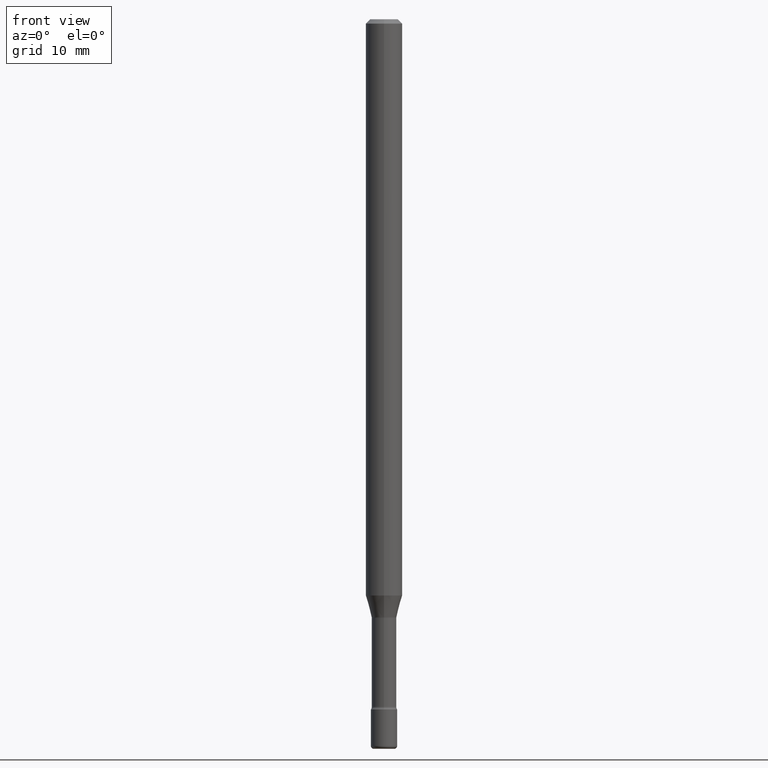
[diagram: clean part render]
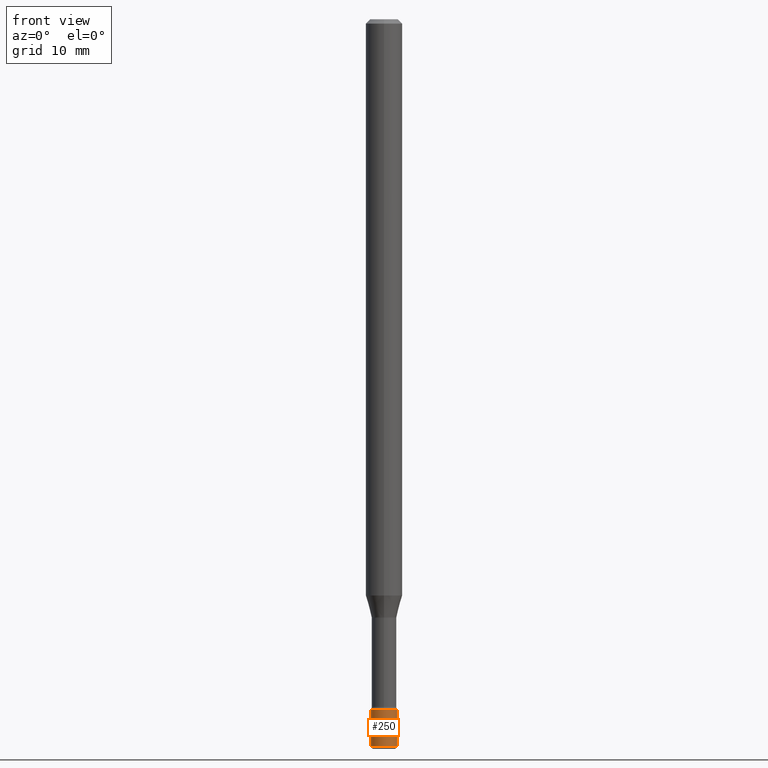
[diagram: same view with one face highlighted and labeled with its STEP entity id]
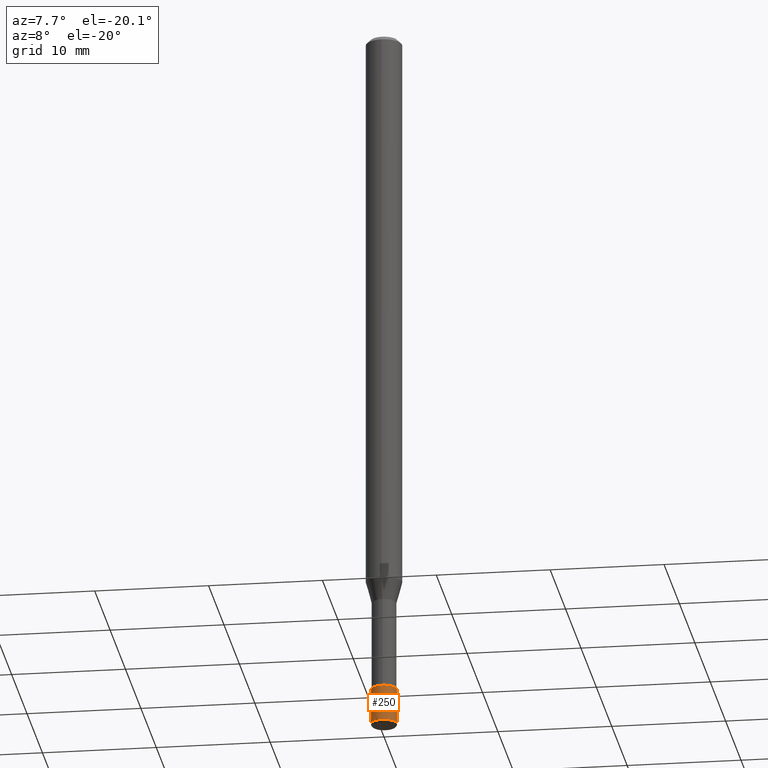
[diagram: same view with one face highlighted and labeled with its STEP entity id]
A machine part, front view. The second image highlights one B-rep face of the part: STEP entity #250.
A second angle (auxiliary view) of the same face is appended — the face is thin or edge-on in the first view.
In plain terms, the highlighted cylindrical surface (edge-blend (fillet) strip) has radius 1.143 mm, axis along (-0, 0, 1).
Its self-contained STEP definition (entity closure, byte-faithful):
#6 = VECTOR ( 'NONE', #255, 39.37007874015748143 ) ;
#21 = CARTESIAN_POINT ( 'NONE',  ( -0.04499999999999999833, -8.155826718949690513E-15, -2.365000000000000213 ) ) ;
#24 = DIRECTION ( 'NONE',  ( -2.445468806185136877E-29, 3.491481338843145188E-15, 1.000000000000000000 ) ) ;
#31 = CARTESIAN_POINT ( 'NONE',  ( -0.04500000000000004691, -8.374044302627387137E-15, -2.489999999999999769 ) ) ;
#42 = EDGE_CURVE ( 'NONE', #418, #435, #361, .T. ) ;
#104 = CARTESIAN_POINT ( 'NONE',  ( 0.000000000000000000, 0.000000000000000000, 0.000000000000000000 ) ) ;
#122 = LINE ( 'NONE', #303, #6 ) ;
#135 = DIRECTION ( 'NONE',  ( 1.000000000000000000, -6.982962677686245411E-15, 0.000000000000000000 ) ) ;
#148 = CARTESIAN_POINT ( 'NONE',  ( 5.783533726627847872E-29, -8.257353366364040046E-15, -2.365000000000000213 ) ) ;
#151 = VERTEX_POINT ( 'NONE', #514 ) ;
#155 = CARTESIAN_POINT ( 'NONE',  ( 0.04499999999999999833, -3.142333204958819823E-16, 2.194279549108170967E-30 ) ) ;
#167 = AXIS2_PLACEMENT_3D ( 'NONE', #543, #275, #135 ) ;
#190 = CYLINDRICAL_SURFACE ( 'NONE', #264, 0.04499999999999999833 ) ;
#191 = CIRCLE ( 'NONE', #389, 0.04499999999999999833 ) ;
#196 = ORIENTED_EDGE ( 'NONE', *, *, #402, .F. ) ;
#211 = VERTEX_POINT ( 'NONE', #21 ) ;
#250 = ADVANCED_FACE ( 'NONE', ( #417 ), #190, .T. ) ;
#255 = DIRECTION ( 'NONE',  ( -2.445468806185136877E-29, 3.491481338843145188E-15, 1.000000000000000000 ) ) ;
#264 = AXIS2_PLACEMENT_3D ( 'NONE', #104, #459, #285 ) ;
#275 = DIRECTION ( 'NONE',  ( -2.445468806185136597E-29, 3.491481338843145583E-15, 1.000000000000000000 ) ) ;
#285 = DIRECTION ( 'NONE',  ( 1.000000000000000000, -6.982962677686266711E-15, 4.876176775795935793E-29 ) ) ;
#298 = ORIENTED_EDGE ( 'NONE', *, *, #42, .T. ) ;
#303 = CARTESIAN_POINT ( 'NONE',  ( -0.04499999999999999833, 3.197442310920450718E-16, -2.213520790614707560E-30 ) ) ;
#361 = CIRCLE ( 'NONE', #167, 0.04500000000000000527 ) ;
#366 = DIRECTION ( 'NONE',  ( -2.445468806185136597E-29, 3.491481338843145583E-15, 1.000000000000000000 ) ) ;
#370 = ORIENTED_EDGE ( 'NONE', *, *, #485, .T. ) ;
#371 = EDGE_CURVE ( 'NONE', #418, #211, #122, .T. ) ;
#389 = AXIS2_PLACEMENT_3D ( 'NONE', #148, #366, #537 ) ;
#402 = EDGE_CURVE ( 'NONE', #211, #151, #191, .T. ) ;
#417 = FACE_OUTER_BOUND ( 'NONE', #530, .T. ) ;
#418 = VERTEX_POINT ( 'NONE', #31 ) ;
#435 = VERTEX_POINT ( 'NONE', #510 ) ;
#459 = DIRECTION ( 'NONE',  ( -2.445468806185136597E-29, 3.491481338843145583E-15, 1.000000000000000000 ) ) ;
#479 = ORIENTED_EDGE ( 'NONE', *, *, #371, .F. ) ;
#485 = EDGE_CURVE ( 'NONE', #435, #151, #554, .T. ) ;
#510 = CARTESIAN_POINT ( 'NONE',  ( 0.04500000000000004691, -9.008021854215313402E-15, -2.489999999999999769 ) ) ;
#514 = CARTESIAN_POINT ( 'NONE',  ( 0.04499999999999999833, -8.571586686859921733E-15, -2.365000000000000213 ) ) ;
#518 = VECTOR ( 'NONE', #24, 39.37007874015748143 ) ;
#530 = EDGE_LOOP ( 'NONE', ( #479, #298, #370, #196 ) ) ;
#537 = DIRECTION ( 'NONE',  ( 1.000000000000000000, -6.982962677686269077E-15, 0.000000000000000000 ) ) ;
#543 = CARTESIAN_POINT ( 'NONE',  ( 6.089217327400989947E-29, -8.693788533719431716E-15, -2.489999999999999769 ) ) ;
#554 = LINE ( 'NONE', #155, #518 ) ;